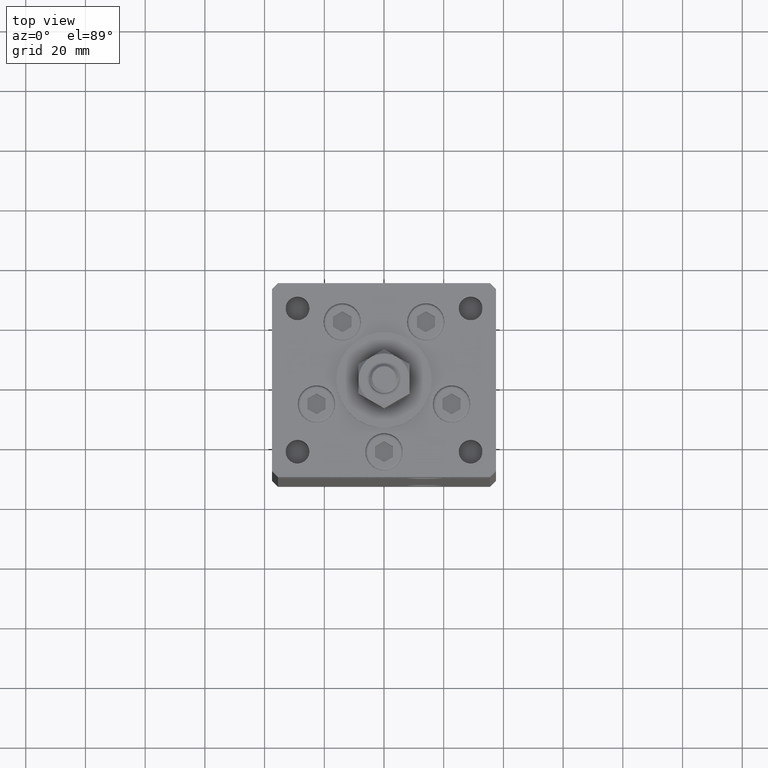
[diagram: clean part render]
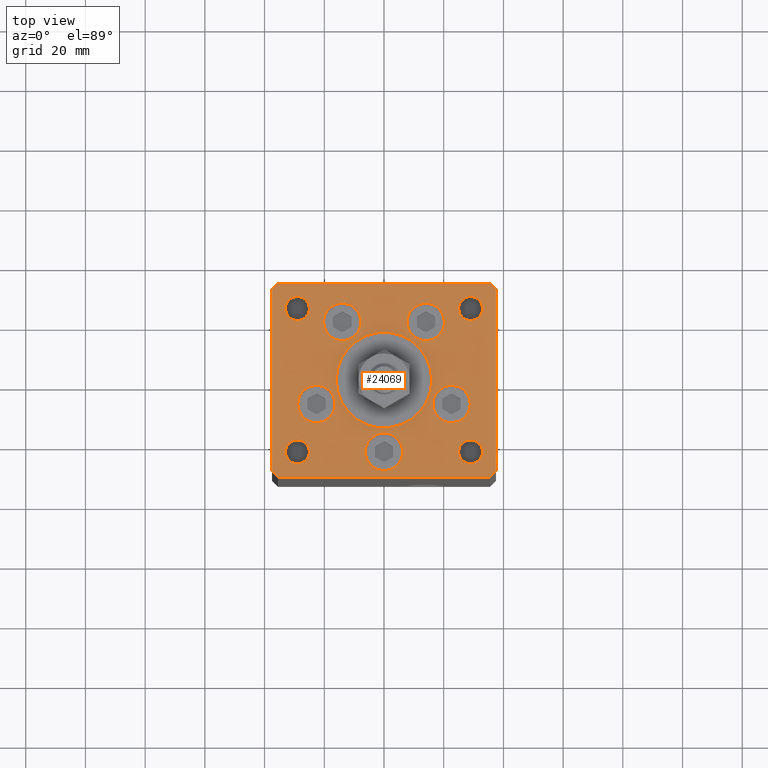
[diagram: same view with one face highlighted and labeled with its STEP entity id]
A machine part, top view. The second image highlights one B-rep face of the part: STEP entity #24069.
In plain terms, the highlighted planar face has unit normal (0, 0, 1).
Its self-contained STEP definition (entity closure, byte-faithful):
#40 = AXIS2_PLACEMENT_3D ( 'NONE', #12669, #49891, #25707 ) ;
#210 = EDGE_CURVE ( 'NONE', #27846, #35491, #7392, .T. ) ;
#713 = EDGE_CURVE ( 'NONE', #7663, #38455, #18145, .T. ) ;
#825 = VERTEX_POINT ( 'NONE', #14152 ) ;
#973 = CIRCLE ( 'NONE', #50453, 6.250000000000001776 ) ;
#1076 = LINE ( 'NONE', #13070, #47786 ) ;
#1306 = VERTEX_POINT ( 'NONE', #5304 ) ;
#1465 = VERTEX_POINT ( 'NONE', #9081 ) ;
#1563 = VERTEX_POINT ( 'NONE', #5243 ) ;
#1763 = LINE ( 'NONE', #47428, #27168 ) ;
#1946 = CARTESIAN_POINT ( 'NONE',  ( -35.50000000000000711, 32.49999999999997868, 0.000000000000000000 ) ) ;
#2067 = DIRECTION ( 'NONE',  ( 0.000000000000000000, 0.000000000000000000, 1.000000000000000000 ) ) ;
#2160 = AXIS2_PLACEMENT_3D ( 'NONE', #50545, #12335, #42145 ) ;
#2369 = EDGE_CURVE ( 'NONE', #16237, #21041, #24283, .T. ) ;
#2685 = FACE_BOUND ( 'NONE', #52204, .T. ) ;
#2717 = CARTESIAN_POINT ( 'NONE',  ( -22.62741699796953299, -8.000000000000000000, 0.000000000000000000 ) ) ;
#2805 = VERTEX_POINT ( 'NONE', #32631 ) ;
#3129 = EDGE_LOOP ( 'NONE', ( #11985, #6202 ) ) ;
#3196 = DIRECTION ( 'NONE',  ( 0.000000000000000000, 0.000000000000000000, 1.000000000000000000 ) ) ;
#3364 = DIRECTION ( 'NONE',  ( 1.000000000000000000, 0.000000000000000000, 0.000000000000000000 ) ) ;
#3919 = VECTOR ( 'NONE', #27103, 1000.000000000000000 ) ;
#4379 = ORIENTED_EDGE ( 'NONE', *, *, #44544, .T. ) ;
#4519 = VERTEX_POINT ( 'NONE', #16662 ) ;
#5125 = CARTESIAN_POINT ( 'NONE',  ( 35.50000000000001421, -32.49999999999992184, 0.000000000000000000 ) ) ;
#5243 = CARTESIAN_POINT ( 'NONE',  ( 37.50000000000000711, 30.50000000000001421, 0.000000000000000000 ) ) ;
#5304 = CARTESIAN_POINT ( 'NONE',  ( -16.37741699796953299, -8.000000000000000000, 0.000000000000000000 ) ) ;
#6202 = ORIENTED_EDGE ( 'NONE', *, *, #13120, .F. ) ;
#6782 = FACE_BOUND ( 'NONE', #23702, .T. ) ;
#6796 = DIRECTION ( 'NONE',  ( -1.000000000000000000, 0.000000000000000000, 0.000000000000000000 ) ) ;
#7392 = LINE ( 'NONE', #31594, #15512 ) ;
#7436 = EDGE_CURVE ( 'NONE', #21041, #16237, #8743, .T. ) ;
#7588 = FACE_BOUND ( 'NONE', #30204, .T. ) ;
#7663 = VERTEX_POINT ( 'NONE', #37536 ) ;
#8048 = DIRECTION ( 'NONE',  ( 1.000000000000000000, 0.000000000000000000, 0.000000000000000000 ) ) ;
#8208 = DIRECTION ( 'NONE',  ( 0.000000000000000000, 0.000000000000000000, 1.000000000000000000 ) ) ;
#8409 = CIRCLE ( 'NONE', #38792, 6.250000000000000000 ) ;
#8576 = DIRECTION ( 'NONE',  ( 0.000000000000000000, 0.000000000000000000, 1.000000000000000000 ) ) ;
#8711 = DIRECTION ( 'NONE',  ( 0.000000000000000000, 0.000000000000000000, 1.000000000000000000 ) ) ;
#8743 = CIRCLE ( 'NONE', #40, 6.250000000000000000 ) ;
#8979 = VERTEX_POINT ( 'NONE', #48950 ) ;
#9081 = CARTESIAN_POINT ( 'NONE',  ( 6.250000000000000000, -24.00000000000001066, 0.000000000000000000 ) ) ;
#9707 = CARTESIAN_POINT ( 'NONE',  ( 0.000000000000000000, -24.00000000000001066, 0.000000000000000000 ) ) ;
#9867 = EDGE_CURVE ( 'NONE', #33271, #29543, #1076, .T. ) ;
#10402 = ORIENTED_EDGE ( 'NONE', *, *, #38651, .F. ) ;
#10593 = ORIENTED_EDGE ( 'NONE', *, *, #20066, .F. ) ;
#10621 = CARTESIAN_POINT ( 'NONE',  ( 24.99999999999999645, 24.00000000000000355, 0.000000000000000000 ) ) ;
#10930 = DIRECTION ( 'NONE',  ( -0.7071067811865524577, -0.7071067811865426878, 0.000000000000000000 ) ) ;
#10970 = CARTESIAN_POINT ( 'NONE',  ( -7.741068579633241242, 19.50000000000000000, 0.000000000000000000 ) ) ;
#11200 = ORIENTED_EDGE ( 'NONE', *, *, #49672, .F. ) ;
#11692 = ORIENTED_EDGE ( 'NONE', *, *, #35256, .F. ) ;
#11985 = ORIENTED_EDGE ( 'NONE', *, *, #12578, .F. ) ;
#12335 = DIRECTION ( 'NONE',  ( -0.000000000000000000, -0.000000000000000000, -1.000000000000000000 ) ) ;
#12408 = CARTESIAN_POINT ( 'NONE',  ( 0.000000000000000000, -6.938893903907228378E-15, 0.000000000000000000 ) ) ;
#12478 = VERTEX_POINT ( 'NONE', #47246 ) ;
#12578 = EDGE_CURVE ( 'NONE', #1306, #15485, #13998, .T. ) ;
#12645 = DIRECTION ( 'NONE',  ( -0.000000000000000000, -0.000000000000000000, -1.000000000000000000 ) ) ;
#12669 = CARTESIAN_POINT ( 'NONE',  ( -13.99106857963324124, 19.50000000000000000, 0.000000000000000000 ) ) ;
#12679 = CIRCLE ( 'NONE', #17890, 6.250000000000001776 ) ;
#12816 = ORIENTED_EDGE ( 'NONE', *, *, #36613, .T. ) ;
#12946 = VERTEX_POINT ( 'NONE', #42183 ) ;
#13070 = CARTESIAN_POINT ( 'NONE',  ( -35.50000000000001421, -32.50000000000000711, 0.000000000000000000 ) ) ;
#13120 = EDGE_CURVE ( 'NONE', #15485, #1306, #973, .T. ) ;
#13165 = CARTESIAN_POINT ( 'NONE',  ( -13.99106857963324124, 19.50000000000000000, 0.000000000000000000 ) ) ;
#13309 = DIRECTION ( 'NONE',  ( 0.000000000000000000, 0.000000000000000000, 1.000000000000000000 ) ) ;
#13848 = CARTESIAN_POINT ( 'NONE',  ( 0.000000000000000000, -24.00000000000001066, 0.000000000000000000 ) ) ;
#13998 = CIRCLE ( 'NONE', #48717, 6.250000000000001776 ) ;
#14152 = CARTESIAN_POINT ( 'NONE',  ( 33.00000000000000000, -23.99999999999999645, 0.000000000000000000 ) ) ;
#14225 = DIRECTION ( 'NONE',  ( 1.000000000000000000, 0.000000000000000000, 0.000000000000000000 ) ) ;
#14456 = DIRECTION ( 'NONE',  ( -1.000000000000000000, 0.000000000000000000, 0.000000000000000000 ) ) ;
#14694 = DIRECTION ( 'NONE',  ( -0.000000000000000000, -0.000000000000000000, -1.000000000000000000 ) ) ;
#14949 = FACE_BOUND ( 'NONE', #23919, .T. ) ;
#15221 = CARTESIAN_POINT ( 'NONE',  ( 0.000000000000000000, 0.000000000000000000, 0.000000000000000000 ) ) ;
#15422 = DIRECTION ( 'NONE',  ( 0.000000000000000000, 0.000000000000000000, 1.000000000000000000 ) ) ;
#15435 = DIRECTION ( 'NONE',  ( 1.000000000000000000, 0.000000000000000000, 0.000000000000000000 ) ) ;
#15485 = VERTEX_POINT ( 'NONE', #52543 ) ;
#15512 = VECTOR ( 'NONE', #27519, 1000.000000000000000 ) ;
#16237 = VERTEX_POINT ( 'NONE', #10970 ) ;
#16366 = AXIS2_PLACEMENT_3D ( 'NONE', #9707, #2067, #34718 ) ;
#16556 = EDGE_LOOP ( 'NONE', ( #11692, #10402 ) ) ;
#16662 = CARTESIAN_POINT ( 'NONE',  ( -37.50000000000000000, -30.50000000000004263, 0.000000000000000000 ) ) ;
#16861 = EDGE_LOOP ( 'NONE', ( #26554, #45127 ) ) ;
#17267 = VECTOR ( 'NONE', #10930, 1000.000000000000000 ) ;
#17300 = ORIENTED_EDGE ( 'NONE', *, *, #18851, .T. ) ;
#17449 = EDGE_LOOP ( 'NONE', ( #18559, #30635 ) ) ;
#17890 = AXIS2_PLACEMENT_3D ( 'NONE', #18934, #35777, #48534 ) ;
#18033 = VERTEX_POINT ( 'NONE', #45743 ) ;
#18108 = VECTOR ( 'NONE', #18687, 1000.000000000000000 ) ;
#18145 = CIRCLE ( 'NONE', #35523, 6.250000000000001776 ) ;
#18154 = LINE ( 'NONE', #43140, #3919 ) ;
#18245 = VERTEX_POINT ( 'NONE', #18282 ) ;
#18282 = CARTESIAN_POINT ( 'NONE',  ( -25.00000000000000355, -23.99999999999999645, 0.000000000000000000 ) ) ;
#18559 = ORIENTED_EDGE ( 'NONE', *, *, #30496, .F. ) ;
#18687 = DIRECTION ( 'NONE',  ( 0.7071067811865512365, -0.7071067811865439090, 0.000000000000000000 ) ) ;
#18851 = EDGE_CURVE ( 'NONE', #12478, #12946, #35890, .T. ) ;
#18934 = CARTESIAN_POINT ( 'NONE',  ( 22.62741699796953299, -8.000000000000000000, 0.000000000000000000 ) ) ;
#18961 = DIRECTION ( 'NONE',  ( 0.000000000000000000, 0.000000000000000000, 1.000000000000000000 ) ) ;
#19093 = EDGE_LOOP ( 'NONE', ( #48802, #50775 ) ) ;
#19094 = LINE ( 'NONE', #35672, #17267 ) ;
#19131 = EDGE_CURVE ( 'NONE', #28252, #45993, #39340, .T. ) ;
#19302 = FACE_OUTER_BOUND ( 'NONE', #40036, .T. ) ;
#19434 = DIRECTION ( 'NONE',  ( 0.000000000000000000, 0.000000000000000000, 1.000000000000000000 ) ) ;
#19448 = AXIS2_PLACEMENT_3D ( 'NONE', #37397, #8576, #8048 ) ;
#19550 = CARTESIAN_POINT ( 'NONE',  ( 25.00000000000000355, -23.99999999999999645, 0.000000000000000000 ) ) ;
#19672 = AXIS2_PLACEMENT_3D ( 'NONE', #13848, #13309, #50262 ) ;
#19772 = EDGE_CURVE ( 'NONE', #18245, #8979, #33333, .T. ) ;
#19942 = CARTESIAN_POINT ( 'NONE',  ( 33.00000000000000000, 24.00000000000000355, 0.000000000000000000 ) ) ;
#20066 = EDGE_CURVE ( 'NONE', #30187, #32717, #50641, .T. ) ;
#20602 = AXIS2_PLACEMENT_3D ( 'NONE', #20811, #12645, #33306 ) ;
#20811 = CARTESIAN_POINT ( 'NONE',  ( 29.00000000000000355, -23.99999999999999645, 0.000000000000000000 ) ) ;
#21041 = VERTEX_POINT ( 'NONE', #39357 ) ;
#21131 = CIRCLE ( 'NONE', #28926, 4.000000000000000000 ) ;
#22066 = AXIS2_PLACEMENT_3D ( 'NONE', #15221, #31800, #27721 ) ;
#22618 = DIRECTION ( 'NONE',  ( -0.000000000000000000, -0.000000000000000000, -1.000000000000000000 ) ) ;
#22718 = DIRECTION ( 'NONE',  ( -0.7071067811865524577, 0.7071067811865426878, 0.000000000000000000 ) ) ;
#22930 = DIRECTION ( 'NONE',  ( 0.000000000000000000, 0.000000000000000000, 1.000000000000000000 ) ) ;
#23162 = CARTESIAN_POINT ( 'NONE',  ( -29.00000000000000000, 24.00000000000000711, 0.000000000000000000 ) ) ;
#23661 = VECTOR ( 'NONE', #49833, 1000.000000000000000 ) ;
#23702 = EDGE_LOOP ( 'NONE', ( #10593, #48566 ) ) ;
#23780 = ORIENTED_EDGE ( 'NONE', *, *, #45270, .T. ) ;
#23919 = EDGE_LOOP ( 'NONE', ( #17300, #12816 ) ) ;
#24069 = ADVANCED_FACE ( 'NONE', ( #48892, #36415, #7588, #44028, #24189, #40759, #14949, #6782, #2685, #19302, #35874 ), #52419, .T. ) ;
#24189 = FACE_BOUND ( 'NONE', #17449, .T. ) ;
#24247 = AXIS2_PLACEMENT_3D ( 'NONE', #12408, #15422, #45028 ) ;
#24283 = CIRCLE ( 'NONE', #49394, 6.250000000000000000 ) ;
#24799 = CARTESIAN_POINT ( 'NONE',  ( 22.62741699796953299, -8.000000000000000000, 0.000000000000000000 ) ) ;
#25194 = ORIENTED_EDGE ( 'NONE', *, *, #38028, .T. ) ;
#25244 = CARTESIAN_POINT ( 'NONE',  ( 16.37741699796953299, -8.000000000000000000, 0.000000000000000000 ) ) ;
#25302 = DIRECTION ( 'NONE',  ( 1.000000000000000000, 0.000000000000000000, 0.000000000000000000 ) ) ;
#25707 = DIRECTION ( 'NONE',  ( 1.000000000000000000, 0.000000000000000000, 0.000000000000000000 ) ) ;
#26161 = DIRECTION ( 'NONE',  ( 1.000000000000000000, 0.000000000000000000, 0.000000000000000000 ) ) ;
#26198 = DIRECTION ( 'NONE',  ( 0.000000000000000000, 0.000000000000000000, 1.000000000000000000 ) ) ;
#26336 = CARTESIAN_POINT ( 'NONE',  ( -22.62741699796953299, -8.000000000000000000, 0.000000000000000000 ) ) ;
#26554 = ORIENTED_EDGE ( 'NONE', *, *, #34117, .T. ) ;
#26720 = LINE ( 'NONE', #44571, #28842 ) ;
#27103 = DIRECTION ( 'NONE',  ( 0.7071067811865463515, 0.7071067811865487940, 0.000000000000000000 ) ) ;
#27168 = VECTOR ( 'NONE', #22718, 1000.000000000000000 ) ;
#27519 = DIRECTION ( 'NONE',  ( -1.000000000000000000, -1.954618001100627573E-16, 0.000000000000000000 ) ) ;
#27721 = DIRECTION ( 'NONE',  ( 1.000000000000000000, 0.000000000000000000, 0.000000000000000000 ) ) ;
#27846 = VERTEX_POINT ( 'NONE', #40784 ) ;
#27944 = DIRECTION ( 'NONE',  ( 1.000000000000000000, 0.000000000000000000, 0.000000000000000000 ) ) ;
#28252 = VERTEX_POINT ( 'NONE', #30081 ) ;
#28842 = VECTOR ( 'NONE', #47630, 1000.000000000000000 ) ;
#28926 = AXIS2_PLACEMENT_3D ( 'NONE', #31473, #52640, #15435 ) ;
#29211 = EDGE_CURVE ( 'NONE', #38455, #7663, #12679, .T. ) ;
#29543 = VERTEX_POINT ( 'NONE', #5125 ) ;
#30081 = CARTESIAN_POINT ( 'NONE',  ( 20.24106857963324302, 19.50000000000000000, 0.000000000000000000 ) ) ;
#30187 = VERTEX_POINT ( 'NONE', #19942 ) ;
#30204 = EDGE_LOOP ( 'NONE', ( #45042, #39706 ) ) ;
#30496 = EDGE_CURVE ( 'NONE', #1465, #31947, #38717, .T. ) ;
#30601 = CARTESIAN_POINT ( 'NONE',  ( 7.741068579633241242, 19.50000000000000000, 0.000000000000000000 ) ) ;
#30635 = ORIENTED_EDGE ( 'NONE', *, *, #41589, .F. ) ;
#30818 = DIRECTION ( 'NONE',  ( 1.000000000000000000, 0.000000000000000000, 0.000000000000000000 ) ) ;
#30920 = CARTESIAN_POINT ( 'NONE',  ( 29.00000000000000000, 24.00000000000000355, 0.000000000000000000 ) ) ;
#31473 = CARTESIAN_POINT ( 'NONE',  ( 29.00000000000000000, 24.00000000000000355, 0.000000000000000000 ) ) ;
#31594 = CARTESIAN_POINT ( 'NONE',  ( 35.50000000000000000, 32.49999999999999289, 0.000000000000000000 ) ) ;
#31712 = CIRCLE ( 'NONE', #2160, 4.000000000000000000 ) ;
#31800 = DIRECTION ( 'NONE',  ( -0.000000000000000000, 0.000000000000000000, 1.000000000000000000 ) ) ;
#31813 = CARTESIAN_POINT ( 'NONE',  ( -29.00000000000000000, 24.00000000000000711, 0.000000000000000000 ) ) ;
#31885 = CIRCLE ( 'NONE', #20602, 4.000000000000000000 ) ;
#31947 = VERTEX_POINT ( 'NONE', #34662 ) ;
#31961 = EDGE_LOOP ( 'NONE', ( #45841, #32173 ) ) ;
#32173 = ORIENTED_EDGE ( 'NONE', *, *, #7436, .F. ) ;
#32458 = EDGE_CURVE ( 'NONE', #45993, #28252, #8409, .T. ) ;
#32631 = CARTESIAN_POINT ( 'NONE',  ( 16.00000000000000355, -4.979459025271462852E-15, 0.000000000000000000 ) ) ;
#32717 = VERTEX_POINT ( 'NONE', #10621 ) ;
#33271 = VERTEX_POINT ( 'NONE', #52050 ) ;
#33275 = CARTESIAN_POINT ( 'NONE',  ( -37.50000000000001421, 30.50000000000000000, 0.000000000000000000 ) ) ;
#33306 = DIRECTION ( 'NONE',  ( -1.000000000000000000, 0.000000000000000000, 0.000000000000000000 ) ) ;
#33333 = CIRCLE ( 'NONE', #48910, 3.999999999999996447 ) ;
#34117 = EDGE_CURVE ( 'NONE', #825, #41423, #31885, .T. ) ;
#34662 = CARTESIAN_POINT ( 'NONE',  ( -6.250000000000000000, -24.00000000000001066, 0.000000000000000000 ) ) ;
#34718 = DIRECTION ( 'NONE',  ( 1.000000000000000000, 0.000000000000000000, 0.000000000000000000 ) ) ;
#34860 = DIRECTION ( 'NONE',  ( 0.000000000000000000, 0.000000000000000000, 1.000000000000000000 ) ) ;
#35130 = CARTESIAN_POINT ( 'NONE',  ( -29.00000000000000000, -23.99999999999999645, 0.000000000000000000 ) ) ;
#35256 = EDGE_CURVE ( 'NONE', #18033, #2805, #52723, .T. ) ;
#35491 = VERTEX_POINT ( 'NONE', #1946 ) ;
#35523 = AXIS2_PLACEMENT_3D ( 'NONE', #24799, #8208, #53581 ) ;
#35672 = CARTESIAN_POINT ( 'NONE',  ( -35.50000000000000711, 32.49999999999997868, 0.000000000000000000 ) ) ;
#35766 = ORIENTED_EDGE ( 'NONE', *, *, #41614, .T. ) ;
#35777 = DIRECTION ( 'NONE',  ( 0.000000000000000000, 0.000000000000000000, 1.000000000000000000 ) ) ;
#35874 = FACE_BOUND ( 'NONE', #16861, .T. ) ;
#35890 = CIRCLE ( 'NONE', #42819, 4.000000000000000000 ) ;
#36415 = FACE_BOUND ( 'NONE', #31961, .T. ) ;
#36600 = ORIENTED_EDGE ( 'NONE', *, *, #19772, .F. ) ;
#36613 = EDGE_CURVE ( 'NONE', #12946, #12478, #40661, .T. ) ;
#36757 = ORIENTED_EDGE ( 'NONE', *, *, #9867, .T. ) ;
#37352 = LINE ( 'NONE', #33275, #23661 ) ;
#37397 = CARTESIAN_POINT ( 'NONE',  ( 13.99106857963324124, 19.50000000000000000, 0.000000000000000000 ) ) ;
#37536 = CARTESIAN_POINT ( 'NONE',  ( 28.87741699796953654, -8.000000000000000000, 0.000000000000000000 ) ) ;
#38028 = EDGE_CURVE ( 'NONE', #35491, #39825, #19094, .T. ) ;
#38455 = VERTEX_POINT ( 'NONE', #25244 ) ;
#38526 = CARTESIAN_POINT ( 'NONE',  ( -37.50000000000000000, -30.50000000000004263, 0.000000000000000000 ) ) ;
#38651 = EDGE_CURVE ( 'NONE', #2805, #18033, #41575, .T. ) ;
#38717 = CIRCLE ( 'NONE', #19672, 6.250000000000000000 ) ;
#38792 = AXIS2_PLACEMENT_3D ( 'NONE', #51433, #22930, #14225 ) ;
#38931 = CIRCLE ( 'NONE', #16366, 6.250000000000000000 ) ;
#39178 = DIRECTION ( 'NONE',  ( 1.000000000000000000, 0.000000000000000000, 0.000000000000000000 ) ) ;
#39340 = CIRCLE ( 'NONE', #19448, 6.250000000000000000 ) ;
#39357 = CARTESIAN_POINT ( 'NONE',  ( -20.24106857963324302, 19.50000000000000000, 0.000000000000000000 ) ) ;
#39706 = ORIENTED_EDGE ( 'NONE', *, *, #32458, .F. ) ;
#39825 = VERTEX_POINT ( 'NONE', #45764 ) ;
#40036 = EDGE_LOOP ( 'NONE', ( #35766, #36757, #52986, #43126, #23780, #45381, #25194, #4379 ) ) ;
#40661 = CIRCLE ( 'NONE', #47578, 4.000000000000000000 ) ;
#40759 = FACE_BOUND ( 'NONE', #3129, .T. ) ;
#40784 = CARTESIAN_POINT ( 'NONE',  ( 35.50000000000000000, 32.49999999999999289, 0.000000000000000000 ) ) ;
#41423 = VERTEX_POINT ( 'NONE', #19550 ) ;
#41575 = CIRCLE ( 'NONE', #24247, 16.00000000000000355 ) ;
#41589 = EDGE_CURVE ( 'NONE', #31947, #1465, #38931, .T. ) ;
#41614 = EDGE_CURVE ( 'NONE', #4519, #33271, #47191, .T. ) ;
#41620 = DIRECTION ( 'NONE',  ( 1.000000000000000000, 1.172770800660376149E-15, 0.000000000000000000 ) ) ;
#42030 = CIRCLE ( 'NONE', #49814, 3.999999999999996447 ) ;
#42145 = DIRECTION ( 'NONE',  ( -1.000000000000000000, 0.000000000000000000, 0.000000000000000000 ) ) ;
#42183 = CARTESIAN_POINT ( 'NONE',  ( -33.00000000000000000, 24.00000000000000711, 0.000000000000000000 ) ) ;
#42671 = CARTESIAN_POINT ( 'NONE',  ( -29.00000000000000000, -23.99999999999999645, 0.000000000000000000 ) ) ;
#42819 = AXIS2_PLACEMENT_3D ( 'NONE', #23162, #22618, #14456 ) ;
#43126 = ORIENTED_EDGE ( 'NONE', *, *, #44743, .T. ) ;
#43140 = CARTESIAN_POINT ( 'NONE',  ( 35.50000000000001421, -32.49999999999992184, 0.000000000000000000 ) ) ;
#44028 = FACE_BOUND ( 'NONE', #19093, .T. ) ;
#44544 = EDGE_CURVE ( 'NONE', #39825, #4519, #37352, .T. ) ;
#44571 = CARTESIAN_POINT ( 'NONE',  ( 37.50000000000000711, -30.49999999999992895, 0.000000000000000000 ) ) ;
#44580 = AXIS2_PLACEMENT_3D ( 'NONE', #30920, #18961, #51279 ) ;
#44743 = EDGE_CURVE ( 'NONE', #46885, #1563, #26720, .T. ) ;
#45028 = DIRECTION ( 'NONE',  ( 1.000000000000000000, 0.000000000000000000, 0.000000000000000000 ) ) ;
#45042 = ORIENTED_EDGE ( 'NONE', *, *, #19131, .F. ) ;
#45127 = ORIENTED_EDGE ( 'NONE', *, *, #52631, .T. ) ;
#45270 = EDGE_CURVE ( 'NONE', #1563, #27846, #1763, .T. ) ;
#45381 = ORIENTED_EDGE ( 'NONE', *, *, #210, .T. ) ;
#45559 = CARTESIAN_POINT ( 'NONE',  ( 37.50000000000000711, -30.49999999999992895, 0.000000000000000000 ) ) ;
#45743 = CARTESIAN_POINT ( 'NONE',  ( -16.00000000000000355, -6.938893903907228378E-15, 0.000000000000000000 ) ) ;
#45764 = CARTESIAN_POINT ( 'NONE',  ( -37.50000000000001421, 30.50000000000000000, 0.000000000000000000 ) ) ;
#45841 = ORIENTED_EDGE ( 'NONE', *, *, #2369, .F. ) ;
#45993 = VERTEX_POINT ( 'NONE', #30601 ) ;
#46885 = VERTEX_POINT ( 'NONE', #45559 ) ;
#47191 = LINE ( 'NONE', #38526, #18108 ) ;
#47246 = CARTESIAN_POINT ( 'NONE',  ( -25.00000000000000000, 24.00000000000000711, 0.000000000000000000 ) ) ;
#47428 = CARTESIAN_POINT ( 'NONE',  ( 37.50000000000000711, 30.50000000000001421, 0.000000000000000000 ) ) ;
#47578 = AXIS2_PLACEMENT_3D ( 'NONE', #31813, #14694, #6796 ) ;
#47593 = EDGE_CURVE ( 'NONE', #32717, #30187, #21131, .T. ) ;
#47630 = DIRECTION ( 'NONE',  ( 0.000000000000000000, 1.000000000000000000, 0.000000000000000000 ) ) ;
#47786 = VECTOR ( 'NONE', #41620, 1000.000000000000000 ) ;
#47853 = DIRECTION ( 'NONE',  ( 0.000000000000000000, 0.000000000000000000, 1.000000000000000000 ) ) ;
#48396 = AXIS2_PLACEMENT_3D ( 'NONE', #49029, #19434, #3364 ) ;
#48534 = DIRECTION ( 'NONE',  ( 1.000000000000000000, 0.000000000000000000, 0.000000000000000000 ) ) ;
#48566 = ORIENTED_EDGE ( 'NONE', *, *, #47593, .F. ) ;
#48717 = AXIS2_PLACEMENT_3D ( 'NONE', #26336, #3196, #27944 ) ;
#48802 = ORIENTED_EDGE ( 'NONE', *, *, #713, .F. ) ;
#48892 = FACE_BOUND ( 'NONE', #16556, .T. ) ;
#48910 = AXIS2_PLACEMENT_3D ( 'NONE', #42671, #8711, #25302 ) ;
#48950 = CARTESIAN_POINT ( 'NONE',  ( -32.99999999999999289, -23.99999999999999645, 0.000000000000000000 ) ) ;
#49029 = CARTESIAN_POINT ( 'NONE',  ( 0.000000000000000000, -6.938893903907228378E-15, 0.000000000000000000 ) ) ;
#49394 = AXIS2_PLACEMENT_3D ( 'NONE', #13165, #26198, #30818 ) ;
#49672 = EDGE_CURVE ( 'NONE', #8979, #18245, #42030, .T. ) ;
#49814 = AXIS2_PLACEMENT_3D ( 'NONE', #35130, #34860, #26161 ) ;
#49833 = DIRECTION ( 'NONE',  ( 2.275047181608926165E-16, -1.000000000000000000, 0.000000000000000000 ) ) ;
#49891 = DIRECTION ( 'NONE',  ( 0.000000000000000000, 0.000000000000000000, 1.000000000000000000 ) ) ;
#50262 = DIRECTION ( 'NONE',  ( 1.000000000000000000, 0.000000000000000000, 0.000000000000000000 ) ) ;
#50453 = AXIS2_PLACEMENT_3D ( 'NONE', #2717, #47853, #39178 ) ;
#50545 = CARTESIAN_POINT ( 'NONE',  ( 29.00000000000000355, -23.99999999999999645, 0.000000000000000000 ) ) ;
#50641 = CIRCLE ( 'NONE', #44580, 4.000000000000000000 ) ;
#50775 = ORIENTED_EDGE ( 'NONE', *, *, #29211, .F. ) ;
#51279 = DIRECTION ( 'NONE',  ( 1.000000000000000000, 0.000000000000000000, 0.000000000000000000 ) ) ;
#51433 = CARTESIAN_POINT ( 'NONE',  ( 13.99106857963324124, 19.50000000000000000, 0.000000000000000000 ) ) ;
#52050 = CARTESIAN_POINT ( 'NONE',  ( -35.50000000000001421, -32.50000000000000711, 0.000000000000000000 ) ) ;
#52124 = EDGE_CURVE ( 'NONE', #29543, #46885, #18154, .T. ) ;
#52204 = EDGE_LOOP ( 'NONE', ( #36600, #11200 ) ) ;
#52419 = PLANE ( 'NONE',  #22066 ) ;
#52543 = CARTESIAN_POINT ( 'NONE',  ( -28.87741699796953654, -8.000000000000000000, 0.000000000000000000 ) ) ;
#52631 = EDGE_CURVE ( 'NONE', #41423, #825, #31712, .T. ) ;
#52640 = DIRECTION ( 'NONE',  ( 0.000000000000000000, 0.000000000000000000, 1.000000000000000000 ) ) ;
#52723 = CIRCLE ( 'NONE', #48396, 16.00000000000000355 ) ;
#52986 = ORIENTED_EDGE ( 'NONE', *, *, #52124, .T. ) ;
#53581 = DIRECTION ( 'NONE',  ( 1.000000000000000000, 0.000000000000000000, 0.000000000000000000 ) ) ;